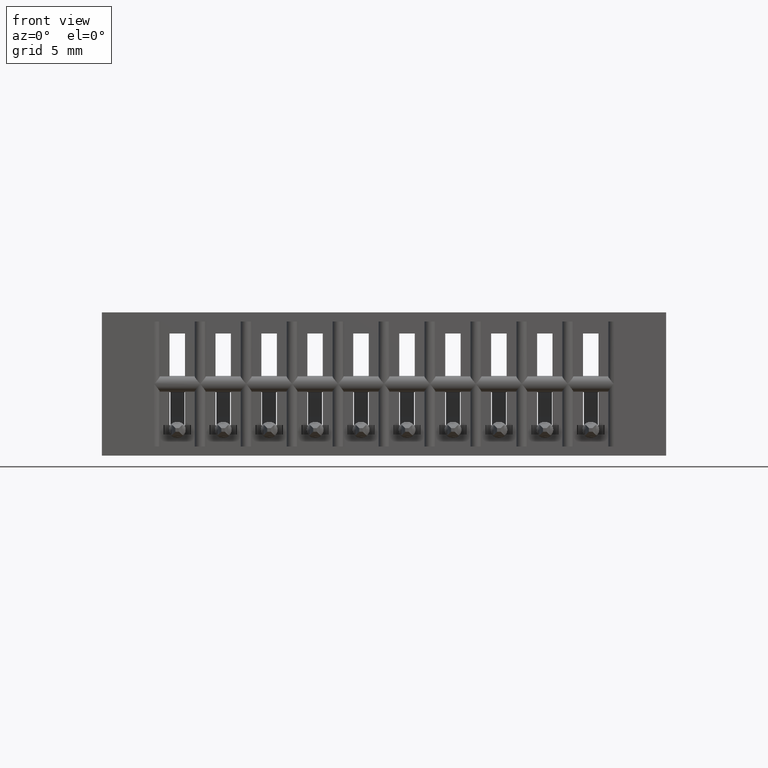
[diagram: clean part render]
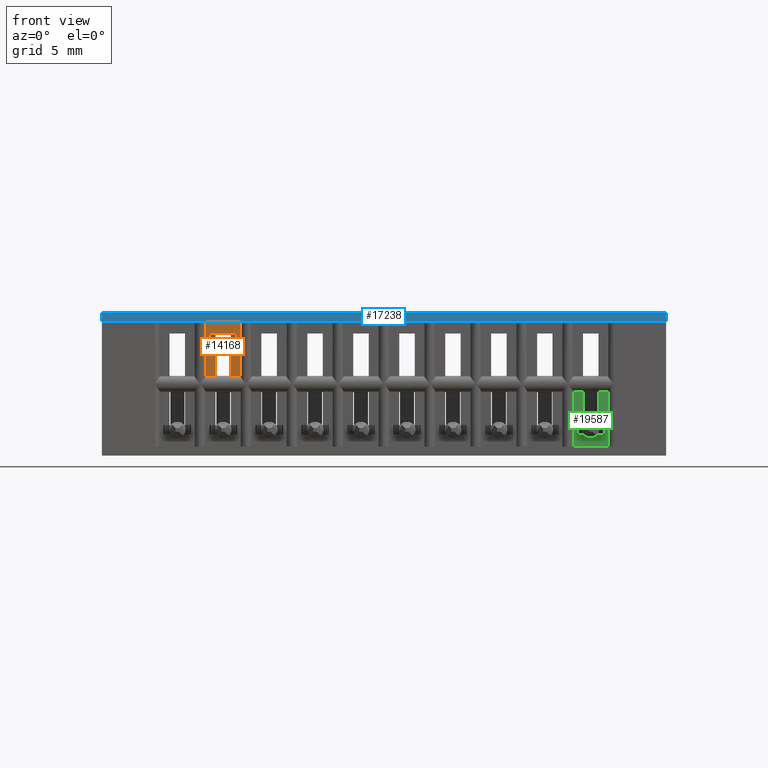
[diagram: same view with three faces highlighted in distinct colors, each labeled with its STEP entity id]
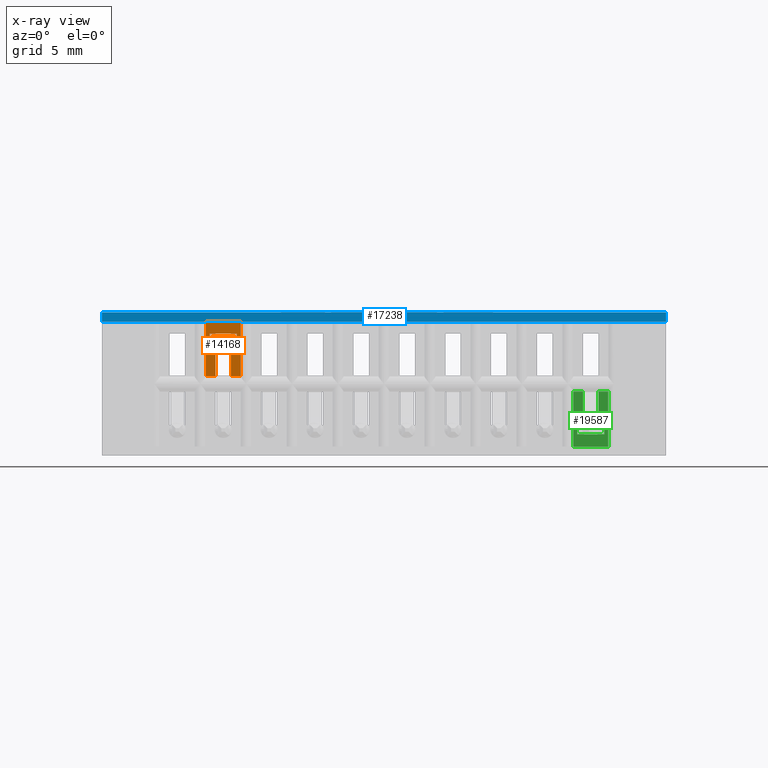
[diagram: x-ray of the same camera — body ghosted, the three highlighted faces saturated]
A machine part, front view with three faces highlighted in distinct colors.
The next image is the same camera in x-ray (body ghosted, the three faces saturated) — at least one of them is partly hidden behind the body in this view.
Their STEP definitions:

[orange] entity #14168 — the highlighted planar face has unit normal (0, 1, 0).
#523 = LINE ( 'NONE', #11097, #12857 ) ;
#592 = DIRECTION ( 'NONE',  ( 1.000000000000000000, -0.0000000000000000000, -2.307304048702925122E-16 ) ) ;
#710 = VERTEX_POINT ( 'NONE', #12104 ) ;
#768 = CARTESIAN_POINT ( 'NONE',  ( 0.3774999999999996692, 0.01499999999999997169, -0.3900000000000000133 ) ) ;
#1028 = CARTESIAN_POINT ( 'NONE',  ( 0.3089999999999997193, 0.01499999999999997169, -0.08249999999999997613 ) ) ;
#1080 = CARTESIAN_POINT ( 'NONE',  ( -19685.03937007874265, 0.01499999999999987801, -0.1741433463808433890 ) ) ;
#1379 = EDGE_CURVE ( 'NONE', #12485, #3223, #5869, .T. ) ;
#1384 = CARTESIAN_POINT ( 'NONE',  ( 0.3509999999999995901, 0.01499999999999997169, -0.1741433463853853947 ) ) ;
#1473 = EDGE_CURVE ( 'NONE', #9337, #17733, #17602, .T. ) ;
#1493 = DIRECTION ( 'NONE',  ( 0.0000000000000000000, -4.596859604723521792E-16, 1.000000000000000000 ) ) ;
#1570 = VECTOR ( 'NONE', #12026, 39.37007874015748143 ) ;
#1898 = EDGE_CURVE ( 'NONE', #17733, #8389, #2953, .T. ) ;
#1971 = LINE ( 'NONE', #768, #12359 ) ;
#2045 = DIRECTION ( 'NONE',  ( 9.044631870915464862E-16, 4.596859604723521792E-16, -1.000000000000000000 ) ) ;
#2781 = CARTESIAN_POINT ( 'NONE',  ( 0.3509999999999997011, 0.01499999999999997169, -5.373951300518784932E-17 ) ) ;
#2953 = LINE ( 'NONE', #15181, #18619 ) ;
#3009 = PLANE ( 'NONE',  #13013 ) ;
#3085 = VECTOR ( 'NONE', #3984, 39.37007874015748143 ) ;
#3223 = VERTEX_POINT ( 'NONE', #1384 ) ;
#3558 = CARTESIAN_POINT ( 'NONE',  ( 0.2824999999999996958, 0.01499999999999997169, -0.1741433463853853669 ) ) ;
#3684 = ORIENTED_EDGE ( 'NONE', *, *, #5542, .F. ) ;
#3893 = CARTESIAN_POINT ( 'NONE',  ( 0.3089999999999997193, 0.01499999999999983291, -0.08249999999999993450 ) ) ;
#3984 = DIRECTION ( 'NONE',  ( -1.000000000000000000, -0.0000000000000000000, 2.307304048702924629E-16 ) ) ;
#4384 = LINE ( 'NONE', #7666, #11079 ) ;
#4663 = CARTESIAN_POINT ( 'NONE',  ( 0.3774999999999996692, 0.01499999999999997169, -0.02500000000000000486 ) ) ;
#5156 = VERTEX_POINT ( 'NONE', #14888 ) ;
#5342 = DIRECTION ( 'NONE',  ( -0.0000000000000000000, -0.0000000000000000000, 1.000000000000000000 ) ) ;
#5397 = CARTESIAN_POINT ( 'NONE',  ( 0.2929999999999995941, 0.01499999999999982250, -0.05749999999999997474 ) ) ;
#5542 = EDGE_CURVE ( 'NONE', #5156, #710, #11792, .T. ) ;
#5710 = DIRECTION ( 'NONE',  ( 1.365923996832131609E-15, -4.596859604723521792E-16, 1.000000000000000000 ) ) ;
#5785 = CARTESIAN_POINT ( 'NONE',  ( 0.2929999999999995941, 0.01499999999999982250, -0.08249999999999996225 ) ) ;
#5845 = VERTEX_POINT ( 'NONE', #18769 ) ;
#5869 = LINE ( 'NONE', #2781, #19575 ) ;
#5939 = ORIENTED_EDGE ( 'NONE', *, *, #1379, .T. ) ;
#6772 = ORIENTED_EDGE ( 'NONE', *, *, #1473, .F. ) ;
#7163 = LINE ( 'NONE', #3893, #17100 ) ;
#7342 = CARTESIAN_POINT ( 'NONE',  ( 0.2824999999999996958, 0.01499999999999997169, -0.02500000000000000486 ) ) ;
#7356 = EDGE_LOOP ( 'NONE', ( #17753, #6772, #16917, #8998, #17811, #15991, #3684, #8181, #5939, #17796, #10167, #11749 ) ) ;
#7374 = DIRECTION ( 'NONE',  ( 2.385081683068867604E-16, 0.0000000000000000000, 1.000000000000000000 ) ) ;
#7666 = CARTESIAN_POINT ( 'NONE',  ( 0.3089999999999997193, 0.01499999999999997169, -4.404883600063556642E-17 ) ) ;
#7721 = DIRECTION ( 'NONE',  ( -0.0000000000000000000, -0.0000000000000000000, 1.000000000000000000 ) ) ;
#7802 = LINE ( 'NONE', #16863, #15857 ) ;
#8181 = ORIENTED_EDGE ( 'NONE', *, *, #15634, .T. ) ;
#8389 = VERTEX_POINT ( 'NONE', #7342 ) ;
#8526 = VECTOR ( 'NONE', #592, 39.37007874015748143 ) ;
#8998 = ORIENTED_EDGE ( 'NONE', *, *, #10445, .F. ) ;
#9138 = VERTEX_POINT ( 'NONE', #5397 ) ;
#9337 = VERTEX_POINT ( 'NONE', #13954 ) ;
#10167 = ORIENTED_EDGE ( 'NONE', *, *, #13651, .T. ) ;
#10207 = CARTESIAN_POINT ( 'NONE',  ( 0.3669999999999997153, 0.01499999999999979475, -1.163771384098140660E-16 ) ) ;
#10445 = EDGE_CURVE ( 'NONE', #15748, #19538, #523, .T. ) ;
#10550 = CARTESIAN_POINT ( 'NONE',  ( 0.3089999999999997193, 0.01499999999999991444, -0.05750000000000015515 ) ) ;
#10992 = DIRECTION ( 'NONE',  ( 1.000000000000000000, 0.0000000000000000000, -2.307304048702925122E-16 ) ) ;
#11079 = VECTOR ( 'NONE', #7374, 39.37007874015748143 ) ;
#11097 = CARTESIAN_POINT ( 'NONE',  ( 0.3089999999999997193, 0.01499999999999983291, -0.08249999999999996225 ) ) ;
#11306 = CARTESIAN_POINT ( 'NONE',  ( 0.2929999999999995941, 0.01499999999999979475, -5.162495758701524272E-17 ) ) ;
#11749 = ORIENTED_EDGE ( 'NONE', *, *, #12590, .F. ) ;
#11792 = LINE ( 'NONE', #10207, #15461 ) ;
#12026 = DIRECTION ( 'NONE',  ( 1.000000000000000000, -0.0000000000000000000, -2.307304048702925122E-16 ) ) ;
#12104 = CARTESIAN_POINT ( 'NONE',  ( 0.3669999999999996598, 0.01499999999999982250, -0.05749999999999998168 ) ) ;
#12359 = VECTOR ( 'NONE', #5342, 39.37007874015748143 ) ;
#12485 = VERTEX_POINT ( 'NONE', #18105 ) ;
#12590 = EDGE_CURVE ( 'NONE', #8389, #15939, #12744, .T. ) ;
#12744 = LINE ( 'NONE', #17008, #8526 ) ;
#12857 = VECTOR ( 'NONE', #17150, 39.37007874015748143 ) ;
#13013 = AXIS2_PLACEMENT_3D ( 'NONE', #14955, #13256, #1493 ) ;
#13256 = DIRECTION ( 'NONE',  ( 1.060635277729750645E-31, 1.000000000000000000, 4.596859604723521792E-16 ) ) ;
#13651 = EDGE_CURVE ( 'NONE', #5845, #15939, #1971, .T. ) ;
#13954 = CARTESIAN_POINT ( 'NONE',  ( 0.3089999999995447499, 0.01499999999999997169, -0.1741433463853853669 ) ) ;
#14168 = ADVANCED_FACE ( 'NONE', ( #15130 ), #3009, .F. ) ;
#14888 = CARTESIAN_POINT ( 'NONE',  ( 0.3669999999999996043, 0.01499999999999982250, -0.08249999999999996225 ) ) ;
#14955 = CARTESIAN_POINT ( 'NONE',  ( 0.3089999999999997193, 0.01499999999999979475, -3.715354659355037839E-17 ) ) ;
#15130 = FACE_OUTER_BOUND ( 'NONE', #7356, .T. ) ;
#15181 = CARTESIAN_POINT ( 'NONE',  ( 0.2824999999999996958, 0.01499999999999997169, -0.3900000000000000133 ) ) ;
#15461 = VECTOR ( 'NONE', #5710, 39.37007874015748143 ) ;
#15634 = EDGE_CURVE ( 'NONE', #5156, #12485, #7163, .T. ) ;
#15748 = VERTEX_POINT ( 'NONE', #5785 ) ;
#15753 = EDGE_CURVE ( 'NONE', #9337, #19538, #4384, .T. ) ;
#15857 = VECTOR ( 'NONE', #10992, 39.37007874015748143 ) ;
#15929 = DIRECTION ( 'NONE',  ( -1.000000000000000000, -6.287160262869416356E-33, 2.444074818391192251E-16 ) ) ;
#15939 = VERTEX_POINT ( 'NONE', #4663 ) ;
#15969 = LINE ( 'NONE', #11306, #19000 ) ;
#15991 = ORIENTED_EDGE ( 'NONE', *, *, #18812, .T. ) ;
#16497 = EDGE_CURVE ( 'NONE', #9138, #15748, #15969, .T. ) ;
#16807 = EDGE_CURVE ( 'NONE', #3223, #5845, #7802, .T. ) ;
#16863 = CARTESIAN_POINT ( 'NONE',  ( 19685.03937007874265, 0.01499999999999987801, -0.1741433463899272616 ) ) ;
#16917 = ORIENTED_EDGE ( 'NONE', *, *, #15753, .T. ) ;
#17008 = CARTESIAN_POINT ( 'NONE',  ( 0.3089999999999997193, 0.01499999999999999424, -0.02500000000000003608 ) ) ;
#17100 = VECTOR ( 'NONE', #15929, 39.37007874015748143 ) ;
#17150 = DIRECTION ( 'NONE',  ( 1.000000000000000000, -6.287160262869394461E-33, -2.170533279014657500E-16 ) ) ;
#17602 = LINE ( 'NONE', #1080, #3085 ) ;
#17733 = VERTEX_POINT ( 'NONE', #3558 ) ;
#17753 = ORIENTED_EDGE ( 'NONE', *, *, #1898, .F. ) ;
#17796 = ORIENTED_EDGE ( 'NONE', *, *, #16807, .T. ) ;
#17811 = ORIENTED_EDGE ( 'NONE', *, *, #16497, .F. ) ;
#18105 = CARTESIAN_POINT ( 'NONE',  ( 0.3509999999999995901, 0.01499999999999982250, -0.08249999999999996225 ) ) ;
#18619 = VECTOR ( 'NONE', #7721, 39.37007874015748143 ) ;
#18769 = CARTESIAN_POINT ( 'NONE',  ( 0.3774999999999997247, 0.01499999999999997516, -0.1741433463853853947 ) ) ;
#18812 = EDGE_CURVE ( 'NONE', #9138, #710, #19550, .T. ) ;
#19000 = VECTOR ( 'NONE', #2045, 39.37007874015748143 ) ;
#19178 = DIRECTION ( 'NONE',  ( -2.385081683068867604E-16, 0.0000000000000000000, -1.000000000000000000 ) ) ;
#19538 = VERTEX_POINT ( 'NONE', #1028 ) ;
#19550 = LINE ( 'NONE', #10550, #1570 ) ;
#19575 = VECTOR ( 'NONE', #19178, 39.37007874015748143 ) ;

[blue] entity #17238 — the highlighted planar face has unit normal (0, 1, 0).
#1664 = VERTEX_POINT ( 'NONE', #3367 ) ;
#2067 = ORIENTED_EDGE ( 'NONE', *, *, #8431, .F. ) ;
#2173 = ORIENTED_EDGE ( 'NONE', *, *, #3839, .F. ) ;
#2526 = DIRECTION ( 'NONE',  ( 0.0000000000000000000, 0.0000000000000000000, -1.000000000000000000 ) ) ;
#3286 = FACE_OUTER_BOUND ( 'NONE', #5660, .T. ) ;
#3367 = CARTESIAN_POINT ( 'NONE',  ( 0.0000000000000000000, 0.1000000000000000056, 0.0000000000000000000 ) ) ;
#3799 = AXIS2_PLACEMENT_3D ( 'NONE', #7671, #6271, #15517 ) ;
#3839 = EDGE_CURVE ( 'NONE', #10868, #17877, #18469, .T. ) ;
#4631 = CARTESIAN_POINT ( 'NONE',  ( 1.534999999999999920, 0.1000000000000000056, 0.0000000000000000000 ) ) ;
#5013 = LINE ( 'NONE', #11100, #19011 ) ;
#5660 = EDGE_LOOP ( 'NONE', ( #13735, #2173, #2067, #13843 ) ) ;
#5846 = LINE ( 'NONE', #4631, #13277 ) ;
#6271 = DIRECTION ( 'NONE',  ( -0.0000000000000000000, 1.000000000000000000, 0.0000000000000000000 ) ) ;
#6410 = VERTEX_POINT ( 'NONE', #7680 ) ;
#7292 = VECTOR ( 'NONE', #16081, 39.37007874015748143 ) ;
#7671 = CARTESIAN_POINT ( 'NONE',  ( 1.534999999999999920, 0.1000000000000000056, 0.0000000000000000000 ) ) ;
#7680 = CARTESIAN_POINT ( 'NONE',  ( 1.534999999999999920, 0.1000000000000000056, 0.0000000000000000000 ) ) ;
#8431 = EDGE_CURVE ( 'NONE', #6410, #10868, #5846, .T. ) ;
#9056 = PLANE ( 'NONE',  #3799 ) ;
#9238 = VECTOR ( 'NONE', #14010, 39.37007874015748143 ) ;
#10502 = LINE ( 'NONE', #19609, #7292 ) ;
#10868 = VERTEX_POINT ( 'NONE', #14224 ) ;
#11100 = CARTESIAN_POINT ( 'NONE',  ( 0.0000000000000000000, 0.1000000000000000056, 0.0000000000000000000 ) ) ;
#13277 = VECTOR ( 'NONE', #18066, 39.37007874015748143 ) ;
#13613 = CARTESIAN_POINT ( 'NONE',  ( 1.534999999999999920, 0.1000000000000000056, -0.02500000000000000486 ) ) ;
#13735 = ORIENTED_EDGE ( 'NONE', *, *, #16965, .T. ) ;
#13803 = EDGE_CURVE ( 'NONE', #6410, #1664, #10502, .T. ) ;
#13843 = ORIENTED_EDGE ( 'NONE', *, *, #13803, .T. ) ;
#14010 = DIRECTION ( 'NONE',  ( -1.000000000000000000, -0.0000000000000000000, -0.0000000000000000000 ) ) ;
#14224 = CARTESIAN_POINT ( 'NONE',  ( 1.534999999999999920, 0.1000000000000000056, -0.02500000000000000486 ) ) ;
#15517 = DIRECTION ( 'NONE',  ( 0.0000000000000000000, -0.0000000000000000000, 1.000000000000000000 ) ) ;
#16081 = DIRECTION ( 'NONE',  ( -1.000000000000000000, -0.0000000000000000000, -0.0000000000000000000 ) ) ;
#16965 = EDGE_CURVE ( 'NONE', #1664, #17877, #5013, .T. ) ;
#17238 = ADVANCED_FACE ( 'NONE', ( #3286 ), #9056, .F. ) ;
#17760 = CARTESIAN_POINT ( 'NONE',  ( 0.0000000000000000000, 0.1000000000000000056, -0.02500000000000000486 ) ) ;
#17877 = VERTEX_POINT ( 'NONE', #17760 ) ;
#18066 = DIRECTION ( 'NONE',  ( 0.0000000000000000000, 0.0000000000000000000, -1.000000000000000000 ) ) ;
#18469 = LINE ( 'NONE', #13613, #9238 ) ;
#19011 = VECTOR ( 'NONE', #2526, 39.37007874015748143 ) ;
#19609 = CARTESIAN_POINT ( 'NONE',  ( 1.534999999999999920, 0.1000000000000000056, 0.0000000000000000000 ) ) ;

[green] entity #19587 — the highlighted planar face has unit normal (0, 1, 0).
#304 = DIRECTION ( 'NONE',  ( -0.0000000000000000000, 4.596859604723521792E-16, -1.000000000000000000 ) ) ;
#394 = ORIENTED_EDGE ( 'NONE', *, *, #1619, .F. ) ;
#727 = DIRECTION ( 'NONE',  ( 4.614608097405849258E-16, -4.596859604723521792E-16, 1.000000000000000000 ) ) ;
#1051 = CARTESIAN_POINT ( 'NONE',  ( 1.366999999999999549, 0.01499999999999994220, -0.3075000000000000511 ) ) ;
#1238 = EDGE_CURVE ( 'NONE', #19187, #4958, #9086, .T. ) ;
#1265 = EDGE_CURVE ( 'NONE', #6400, #14889, #3790, .T. ) ;
#1619 = EDGE_CURVE ( 'NONE', #12027, #4958, #10558, .T. ) ;
#1621 = CARTESIAN_POINT ( 'NONE',  ( 1.350999999999999535, 0.01499999999999994220, -0.3075000000000000511 ) ) ;
#1897 = DIRECTION ( 'NONE',  ( -0.0000000000000000000, -0.0000000000000000000, 1.000000000000000000 ) ) ;
#2259 = CARTESIAN_POINT ( 'NONE',  ( 1.366999999999999549, 0.01499999999999994914, -0.3325000000000000178 ) ) ;
#2465 = CARTESIAN_POINT ( 'NONE',  ( 1.377499999999999725, 0.01499999999999997169, -0.2158566536146137582 ) ) ;
#2536 = FACE_OUTER_BOUND ( 'NONE', #17324, .T. ) ;
#2577 = AXIS2_PLACEMENT_3D ( 'NONE', #5603, #17937, #16262 ) ;
#2610 = CARTESIAN_POINT ( 'NONE',  ( 1.377499999999999725, 0.01499999999999997169, -0.3649999999999999911 ) ) ;
#2839 = LINE ( 'NONE', #19525, #12833 ) ;
#3108 = VERTEX_POINT ( 'NONE', #3610 ) ;
#3403 = VECTOR ( 'NONE', #304, 39.37007874015748143 ) ;
#3503 = DIRECTION ( 'NONE',  ( -2.385081683068867604E-16, 0.0000000000000000000, -1.000000000000000000 ) ) ;
#3586 = CARTESIAN_POINT ( 'NONE',  ( 1.308999999999999941, 0.01499999999999996302, -0.3649999999999999911 ) ) ;
#3610 = CARTESIAN_POINT ( 'NONE',  ( 1.292999999999999483, 0.01499999999999994220, -0.3075000000000000511 ) ) ;
#3685 = CARTESIAN_POINT ( 'NONE',  ( 1.350999999999999979, 0.01499999999999997169, -5.373951300518784932E-17 ) ) ;
#3790 = LINE ( 'NONE', #5367, #7210 ) ;
#4187 = CARTESIAN_POINT ( 'NONE',  ( 1.350999999999999979, 0.01499999999999997169, -0.2158566536146137582 ) ) ;
#4210 = CARTESIAN_POINT ( 'NONE',  ( 1.282499999999999751, 0.01499999999999997169, -0.3649999999999999911 ) ) ;
#4446 = EDGE_CURVE ( 'NONE', #14933, #10352, #12539, .T. ) ;
#4582 = DIRECTION ( 'NONE',  ( 2.385081683068867604E-16, 0.0000000000000000000, 1.000000000000000000 ) ) ;
#4694 = ORIENTED_EDGE ( 'NONE', *, *, #1265, .T. ) ;
#4958 = VERTEX_POINT ( 'NONE', #2259 ) ;
#5229 = VECTOR ( 'NONE', #727, 39.37007874015748143 ) ;
#5235 = ORIENTED_EDGE ( 'NONE', *, *, #16122, .F. ) ;
#5367 = CARTESIAN_POINT ( 'NONE',  ( 1.377499999999999725, 0.01499999999999997169, -0.3900000000000000133 ) ) ;
#5382 = DIRECTION ( 'NONE',  ( -0.0000000000000000000, -0.0000000000000000000, 1.000000000000000000 ) ) ;
#5603 = CARTESIAN_POINT ( 'NONE',  ( 1.308999999999999941, 0.01499999999999979475, -3.715354659355037839E-17 ) ) ;
#5683 = VECTOR ( 'NONE', #8934, 39.37007874015748143 ) ;
#5759 = CARTESIAN_POINT ( 'NONE',  ( 1.308999999999999941, 0.01499999999999993526, -0.3075000000000000511 ) ) ;
#6056 = LINE ( 'NONE', #5759, #5683 ) ;
#6400 = VERTEX_POINT ( 'NONE', #2610 ) ;
#6496 = VECTOR ( 'NONE', #19663, 39.37007874015748143 ) ;
#6579 = VECTOR ( 'NONE', #4582, 39.37007874015748143 ) ;
#6595 = EDGE_CURVE ( 'NONE', #13436, #8889, #7871, .T. ) ;
#7075 = LINE ( 'NONE', #18997, #15508 ) ;
#7210 = VECTOR ( 'NONE', #1897, 39.37007874015748143 ) ;
#7871 = LINE ( 'NONE', #3685, #9229 ) ;
#7872 = CARTESIAN_POINT ( 'NONE',  ( 1.366999999999999549, 0.01499999999999979475, -3.715354659355037839E-17 ) ) ;
#8621 = DIRECTION ( 'NONE',  ( -1.000000000000000000, -0.0000000000000000000, 2.307304048702924629E-16 ) ) ;
#8889 = VERTEX_POINT ( 'NONE', #1621 ) ;
#8934 = DIRECTION ( 'NONE',  ( -1.000000000000000000, 6.287160262869394461E-33, 2.170533279014657500E-16 ) ) ;
#9046 = CARTESIAN_POINT ( 'NONE',  ( 1.308999999999999941, 0.01499999999999994914, -0.3325000000000000178 ) ) ;
#9086 = LINE ( 'NONE', #7872, #3403 ) ;
#9229 = VECTOR ( 'NONE', #3503, 39.37007874015748143 ) ;
#9285 = ORIENTED_EDGE ( 'NONE', *, *, #1238, .T. ) ;
#9495 = LINE ( 'NONE', #14372, #5229 ) ;
#9529 = LINE ( 'NONE', #17565, #9855 ) ;
#9729 = ORIENTED_EDGE ( 'NONE', *, *, #12569, .T. ) ;
#9855 = VECTOR ( 'NONE', #12810, 39.37007874015748143 ) ;
#10168 = LINE ( 'NONE', #19091, #18345 ) ;
#10352 = VERTEX_POINT ( 'NONE', #18042 ) ;
#10527 = EDGE_CURVE ( 'NONE', #12027, #3108, #9495, .T. ) ;
#10558 = LINE ( 'NONE', #9046, #6496 ) ;
#10782 = CARTESIAN_POINT ( 'NONE',  ( 1.292999999999999483, 0.01499999999999993873, -0.3324999999999999623 ) ) ;
#11069 = VERTEX_POINT ( 'NONE', #19370 ) ;
#11360 = EDGE_CURVE ( 'NONE', #14889, #13436, #2839, .T. ) ;
#11549 = DIRECTION ( 'NONE',  ( 1.000000000000000000, 0.0000000000000000000, -2.307304048702924629E-16 ) ) ;
#12027 = VERTEX_POINT ( 'NONE', #10782 ) ;
#12227 = EDGE_CURVE ( 'NONE', #14203, #11069, #7075, .T. ) ;
#12425 = ORIENTED_EDGE ( 'NONE', *, *, #6595, .T. ) ;
#12539 = LINE ( 'NONE', #14133, #6579 ) ;
#12569 = EDGE_CURVE ( 'NONE', #14203, #6400, #17210, .T. ) ;
#12810 = DIRECTION ( 'NONE',  ( 1.000000000000000000, 6.287160262869416356E-33, -2.444074818391192251E-16 ) ) ;
#12833 = VECTOR ( 'NONE', #8621, 39.37007874015748143 ) ;
#13436 = VERTEX_POINT ( 'NONE', #4187 ) ;
#13936 = DIRECTION ( 'NONE',  ( 1.000000000000000000, -0.0000000000000000000, -2.307304048702925122E-16 ) ) ;
#14021 = ORIENTED_EDGE ( 'NONE', *, *, #11360, .T. ) ;
#14133 = CARTESIAN_POINT ( 'NONE',  ( 1.308999999999999941, 0.01499999999999997169, -4.404883600063556642E-17 ) ) ;
#14203 = VERTEX_POINT ( 'NONE', #4210 ) ;
#14372 = CARTESIAN_POINT ( 'NONE',  ( 1.292999999999999927, 0.01499999999999979475, -2.977017363770094222E-17 ) ) ;
#14640 = ORIENTED_EDGE ( 'NONE', *, *, #4446, .T. ) ;
#14889 = VERTEX_POINT ( 'NONE', #2465 ) ;
#14933 = VERTEX_POINT ( 'NONE', #16196 ) ;
#15097 = ORIENTED_EDGE ( 'NONE', *, *, #18978, .T. ) ;
#15508 = VECTOR ( 'NONE', #5382, 39.37007874015748143 ) ;
#15653 = EDGE_CURVE ( 'NONE', #11069, #10352, #10168, .T. ) ;
#16122 = EDGE_CURVE ( 'NONE', #14933, #3108, #6056, .T. ) ;
#16144 = ORIENTED_EDGE ( 'NONE', *, *, #10527, .T. ) ;
#16196 = CARTESIAN_POINT ( 'NONE',  ( 1.308999999999999719, 0.01499999999999994220, -0.3075000000000000511 ) ) ;
#16262 = DIRECTION ( 'NONE',  ( 0.0000000000000000000, -4.596859604723521792E-16, 1.000000000000000000 ) ) ;
#16456 = ORIENTED_EDGE ( 'NONE', *, *, #12227, .F. ) ;
#16821 = ORIENTED_EDGE ( 'NONE', *, *, #15653, .F. ) ;
#17210 = LINE ( 'NONE', #3586, #19302 ) ;
#17324 = EDGE_LOOP ( 'NONE', ( #4694, #14021, #12425, #15097, #9285, #394, #16144, #5235, #14640, #16821, #16456, #9729 ) ) ;
#17565 = CARTESIAN_POINT ( 'NONE',  ( 1.308999999999999941, 0.01499999999999993526, -0.3074999999999999956 ) ) ;
#17937 = DIRECTION ( 'NONE',  ( 1.060635277729750645E-31, 1.000000000000000000, 4.596859604723521792E-16 ) ) ;
#18042 = CARTESIAN_POINT ( 'NONE',  ( 1.308999999999172381, 0.01499999999999997169, -0.2158566536146137582 ) ) ;
#18345 = VECTOR ( 'NONE', #11549, 39.37007874015748143 ) ;
#18978 = EDGE_CURVE ( 'NONE', #8889, #19187, #9529, .T. ) ;
#18997 = CARTESIAN_POINT ( 'NONE',  ( 1.282499999999999751, 0.01499999999999997169, -0.3900000000000000133 ) ) ;
#19091 = CARTESIAN_POINT ( 'NONE',  ( -19685.03937007874265, 0.01499999999999989536, -0.2158566536100714750 ) ) ;
#19187 = VERTEX_POINT ( 'NONE', #1051 ) ;
#19302 = VECTOR ( 'NONE', #13936, 39.37007874015748143 ) ;
#19370 = CARTESIAN_POINT ( 'NONE',  ( 1.282499999999999751, 0.01499999999999997169, -0.2158566536146137582 ) ) ;
#19424 = PLANE ( 'NONE',  #2577 ) ;
#19525 = CARTESIAN_POINT ( 'NONE',  ( 19685.03937007874265, 0.01499999999999989536, -0.2158566536191553475 ) ) ;
#19587 = ADVANCED_FACE ( 'NONE', ( #2536 ), #19424, .F. ) ;
#19663 = DIRECTION ( 'NONE',  ( 1.000000000000000000, -0.0000000000000000000, -2.307304048702925122E-16 ) ) ;